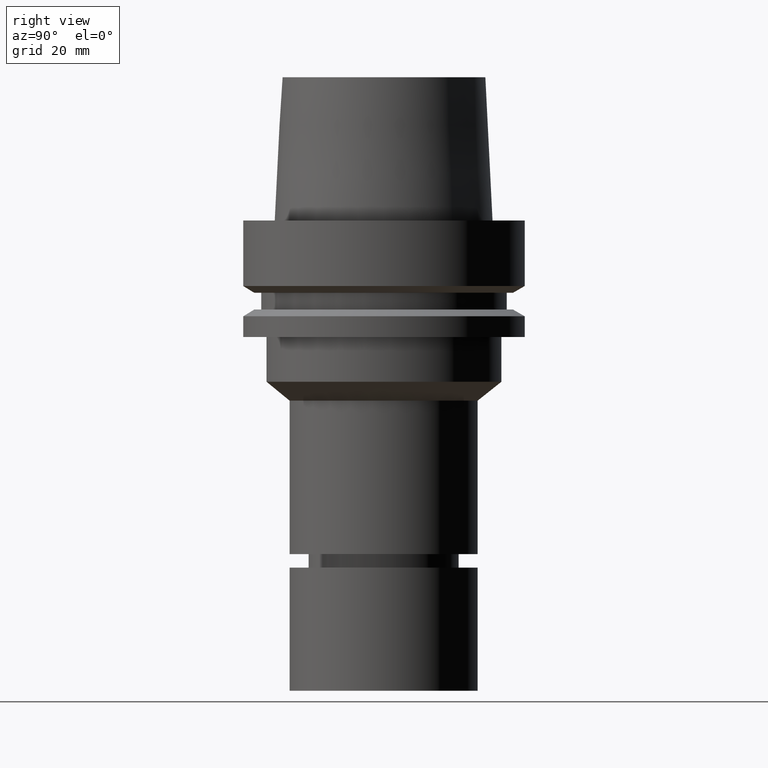
[diagram: clean part render]
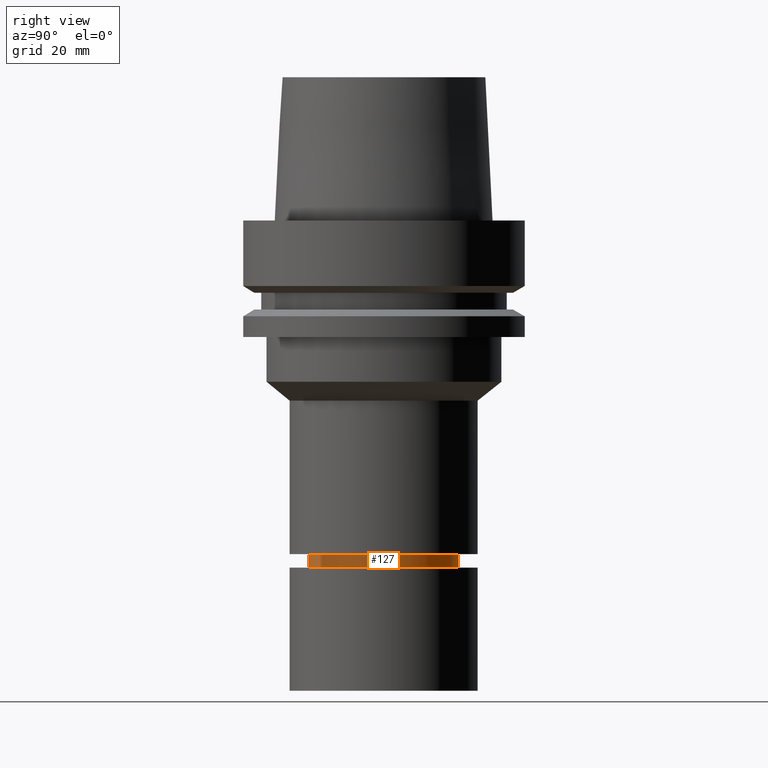
[diagram: same view with one face highlighted and labeled with its STEP entity id]
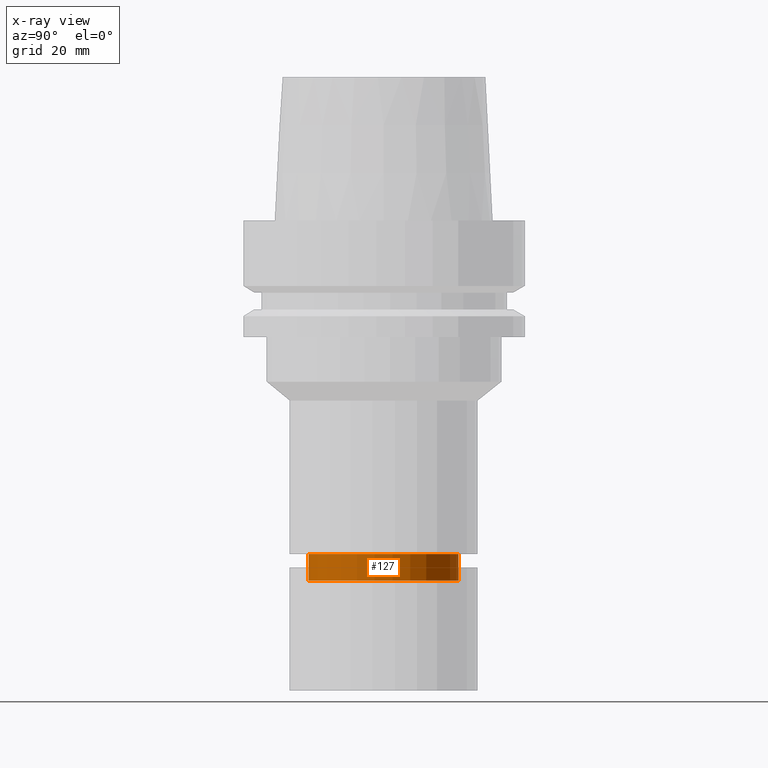
[diagram: x-ray of the same camera — body ghosted, the highlighted face saturated]
A machine part, right view. The second image highlights one B-rep face of the part: STEP entity #127.
The next image is the same camera in x-ray: the body ghosted, the highlighted face saturated — about 0% of this face is hidden behind the body in this view.
In plain terms, the highlighted cylindrical surface (bore or boss wall) has radius 16.75 mm, axis along (-0, -0, 1).
Its self-contained STEP definition (entity closure, byte-faithful):
#127=ADVANCED_FACE('Unnamed[1]',(#289,#290),#291,.T.);
#137=EDGE_CURVE('Unnamed[1]',#306,#306,#307,.T.);
#184=EDGE_CURVE('Unnamed[1]',#376,#376,#377,.T.);
#289=FACE_BOUND('',#498,.T.);
#290=FACE_BOUND('',#499,.T.);
#291=CYLINDRICAL_SURFACE('',#500,16.7499999999962);
#306=VERTEX_POINT('',#519);
#307=CIRCLE('',#520,16.7499999999907);
#376=VERTEX_POINT('',#607);
#377=CIRCLE('',#608,16.7500000000017);
#498=EDGE_LOOP('',(#712));
#499=EDGE_LOOP('',(#713));
#500=AXIS2_PLACEMENT_3D('',#714,#715,#716);
#519=CARTESIAN_POINT('',(4.56180932682384E-015,16.7499999999907,-74.4999999999992));
#520=AXIS2_PLACEMENT_3D('',#732,#733,#734);
#607=CARTESIAN_POINT('',(4.92720259161802E-015,16.7500000000017,-80.4673248653984));
#608=AXIS2_PLACEMENT_3D('',#808,#809,#810);
#712=ORIENTED_EDGE('',*,*,#137,.F.);
#713=ORIENTED_EDGE('',*,*,#184,.T.);
#714=CARTESIAN_POINT('',(4.74450595922093E-015,9.48901191844186E-015,-77.4836624326988));
#715=DIRECTION('',(-6.12323399573676E-017,-1.22464679914735E-016,1.0));
#716=DIRECTION('',(-1.23259516440783E-032,1.0,1.22464679914735E-016));
#732=CARTESIAN_POINT('',(4.56180932682384E-015,9.12361865364768E-015,-74.4999999999992));
#733=DIRECTION('',(-6.12323399573677E-017,-1.22464679914735E-016,1.0));
#734=DIRECTION('',(-1.23259516440783E-032,1.0,1.22464679914735E-016));
#808=CARTESIAN_POINT('',(4.92720259161802E-015,9.85440518323604E-015,-80.4673248653984));
#809=DIRECTION('',(-6.12323399573677E-017,-1.22464679914735E-016,1.0));
#810=DIRECTION('',(-1.23259516440783E-032,1.0,1.22464679914735E-016));